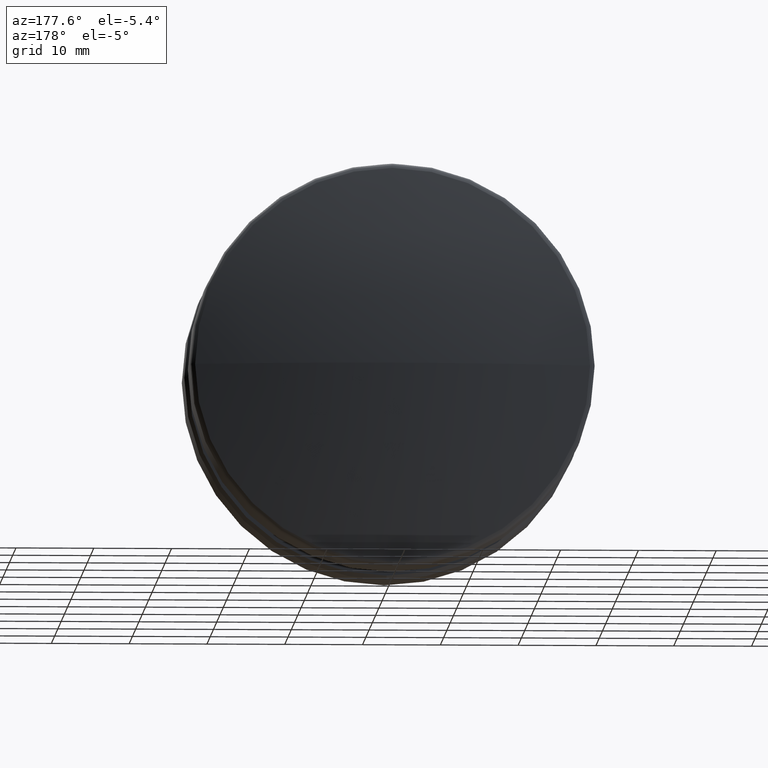
[diagram: clean part render]
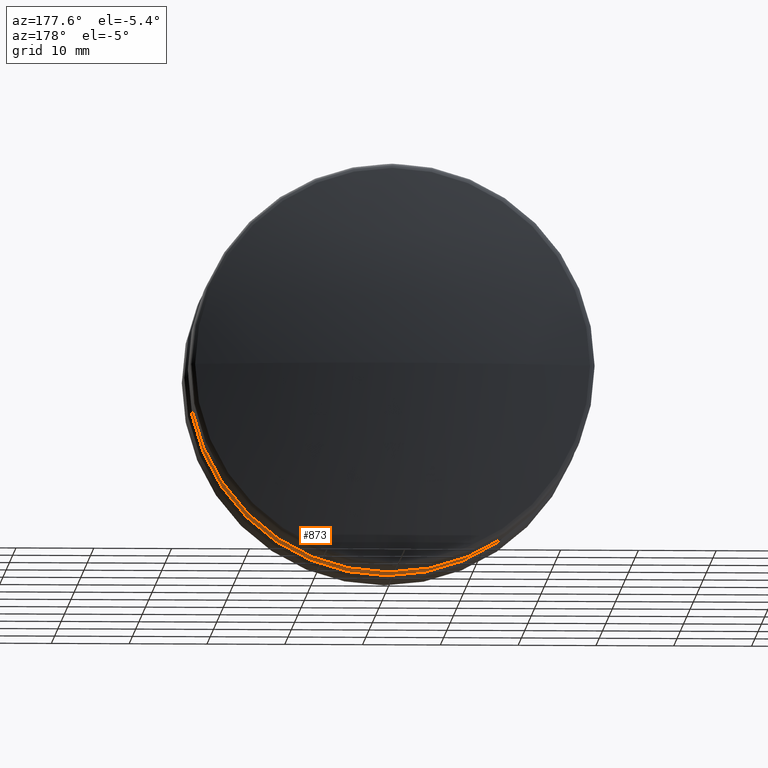
[diagram: same view with one face highlighted and labeled with its STEP entity id]
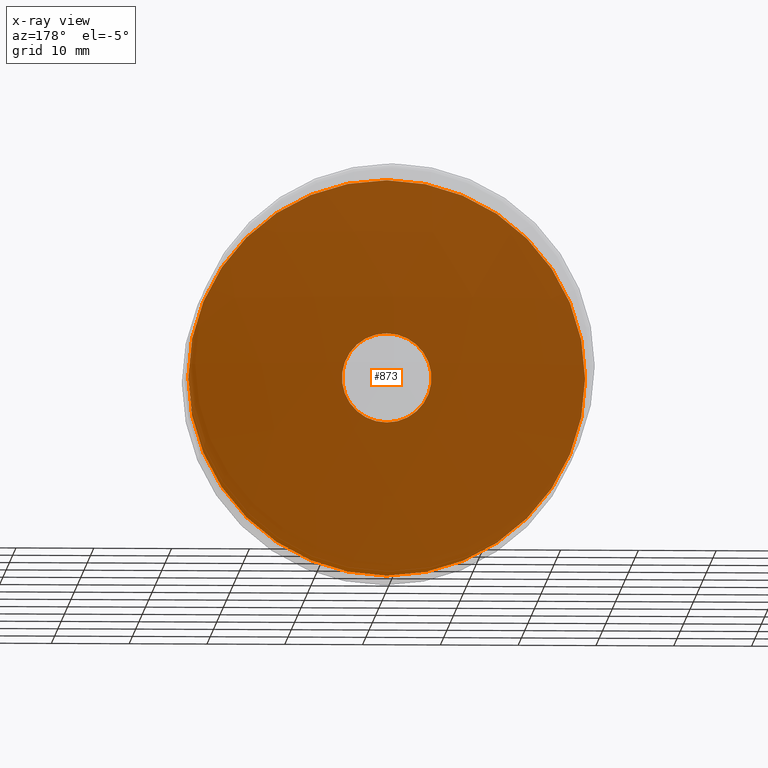
[diagram: x-ray of the same camera — body ghosted, the highlighted face saturated]
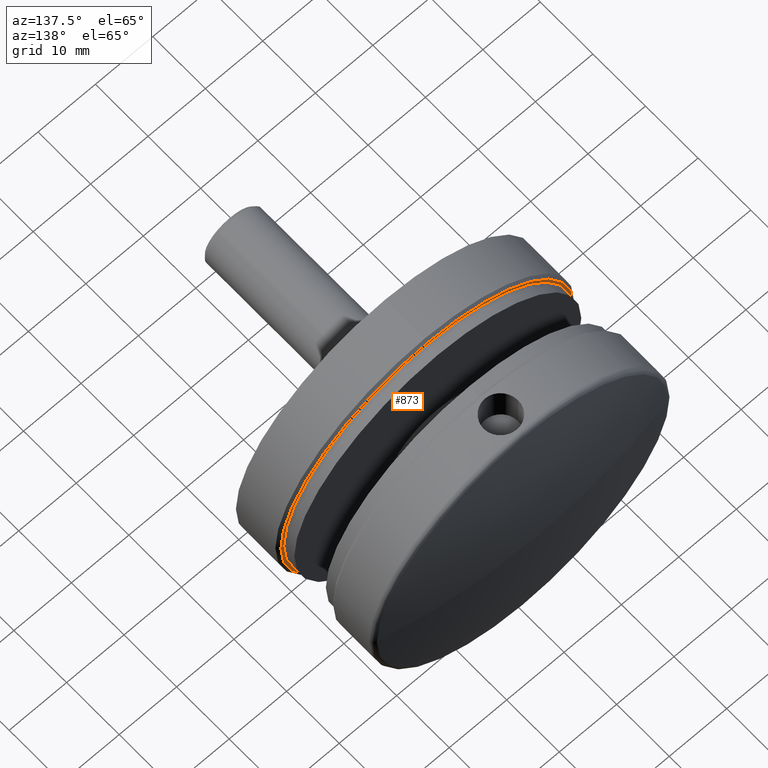
[diagram: same view with one face highlighted and labeled with its STEP entity id]
A machine part, auxiliary view. The second image highlights one B-rep face of the part: STEP entity #873.
The next image is the same camera in x-ray: the body ghosted, the highlighted face saturated — about 99% of this face is hidden behind the body in this view.
A second angle (auxiliary view) of the same face is appended — the face is thin or edge-on in the first view.
In plain terms, the highlighted planar face has unit normal (0, 1, 0).
Its self-contained STEP definition (entity closure, byte-faithful):
#40 = VERTEX_POINT ( 'NONE', #12541 ) ;
#43 = DIRECTION ( 'NONE',  ( 0.000000000000000000, 0.000000000000000000, 1.000000000000000000 ) ) ;
#176 = PLANE ( 'NONE',  #2615 ) ;
#240 = AXIS2_PLACEMENT_3D ( 'NONE', #11372, #11308, #6427 ) ;
#873 = ADVANCED_FACE ( 'NONE', ( #3167, #3558 ), #176, .T. ) ;
#1243 = DIRECTION ( 'NONE',  ( 0.000000000000000000, 1.000000000000000000, 0.000000000000000000 ) ) ;
#1377 = ORIENTED_EDGE ( 'NONE', *, *, #2030, .T. ) ;
#1474 = CARTESIAN_POINT ( 'NONE',  ( 5.250000000000000000, 4.000000000000000000, 0.000000000000000000 ) ) ;
#1555 = DIRECTION ( 'NONE',  ( 0.000000000000000000, 0.000000000000000000, 1.000000000000000000 ) ) ;
#2030 = EDGE_CURVE ( 'NONE', #7599, #9814, #2558, .T. ) ;
#2213 = AXIS2_PLACEMENT_3D ( 'NONE', #10195, #10065, #43 ) ;
#2463 = EDGE_CURVE ( 'NONE', #8030, #40, #10337, .T. ) ;
#2558 = CIRCLE ( 'NONE', #240, 25.49999999999999289 ) ;
#2615 = AXIS2_PLACEMENT_3D ( 'NONE', #1474, #1243, #10208 ) ;
#3167 = FACE_BOUND ( 'NONE', #4929, .T. ) ;
#3517 = CARTESIAN_POINT ( 'NONE',  ( 0.000000000000000000, 4.000000000000000000, 0.000000000000000000 ) ) ;
#3558 = FACE_OUTER_BOUND ( 'NONE', #15878, .T. ) ;
#3690 = EDGE_CURVE ( 'NONE', #40, #8030, #4948, .T. ) ;
#4717 = ORIENTED_EDGE ( 'NONE', *, *, #2463, .T. ) ;
#4929 = EDGE_LOOP ( 'NONE', ( #4717, #16121 ) ) ;
#4948 = CIRCLE ( 'NONE', #6964, 5.749999999999998224 ) ;
#5334 = DIRECTION ( 'NONE',  ( -0.000000000000000000, -1.000000000000000000, -0.000000000000000000 ) ) ;
#6326 = DIRECTION ( 'NONE',  ( 0.000000000000000000, 0.000000000000000000, 1.000000000000000000 ) ) ;
#6427 = DIRECTION ( 'NONE',  ( 0.000000000000000000, 0.000000000000000000, 1.000000000000000000 ) ) ;
#6611 = ORIENTED_EDGE ( 'NONE', *, *, #15704, .T. ) ;
#6964 = AXIS2_PLACEMENT_3D ( 'NONE', #3517, #8649, #6326 ) ;
#7599 = VERTEX_POINT ( 'NONE', #12058 ) ;
#8030 = VERTEX_POINT ( 'NONE', #14018 ) ;
#8649 = DIRECTION ( 'NONE',  ( -0.000000000000000000, -1.000000000000000000, -0.000000000000000000 ) ) ;
#9814 = VERTEX_POINT ( 'NONE', #12229 ) ;
#10065 = DIRECTION ( 'NONE',  ( 0.000000000000000000, 1.000000000000000000, 0.000000000000000000 ) ) ;
#10195 = CARTESIAN_POINT ( 'NONE',  ( 0.000000000000000000, 4.000000000000000000, 0.000000000000000000 ) ) ;
#10208 = DIRECTION ( 'NONE',  ( 0.000000000000000000, -0.000000000000000000, 1.000000000000000000 ) ) ;
#10337 = CIRCLE ( 'NONE', #13384, 5.749999999999998224 ) ;
#11308 = DIRECTION ( 'NONE',  ( 0.000000000000000000, 1.000000000000000000, 0.000000000000000000 ) ) ;
#11372 = CARTESIAN_POINT ( 'NONE',  ( 0.000000000000000000, 4.000000000000000000, 0.000000000000000000 ) ) ;
#12058 = CARTESIAN_POINT ( 'NONE',  ( 0.000000000000000000, 4.000000000000000000, -25.49999999999999289 ) ) ;
#12229 = CARTESIAN_POINT ( 'NONE',  ( 3.153465507804433615E-15, 4.000000000000000000, 25.49999999999999289 ) ) ;
#12541 = CARTESIAN_POINT ( 'NONE',  ( 7.041719095097278907E-16, 4.000000000000000000, -5.749999999999998224 ) ) ;
#13384 = AXIS2_PLACEMENT_3D ( 'NONE', #15607, #5334, #1555 ) ;
#13656 = CIRCLE ( 'NONE', #2213, 25.49999999999999289 ) ;
#14018 = CARTESIAN_POINT ( 'NONE',  ( 0.000000000000000000, 4.000000000000000000, 5.749999999999998224 ) ) ;
#15607 = CARTESIAN_POINT ( 'NONE',  ( 0.000000000000000000, 4.000000000000000000, 0.000000000000000000 ) ) ;
#15704 = EDGE_CURVE ( 'NONE', #9814, #7599, #13656, .T. ) ;
#15878 = EDGE_LOOP ( 'NONE', ( #1377, #6611 ) ) ;
#16121 = ORIENTED_EDGE ( 'NONE', *, *, #3690, .T. ) ;